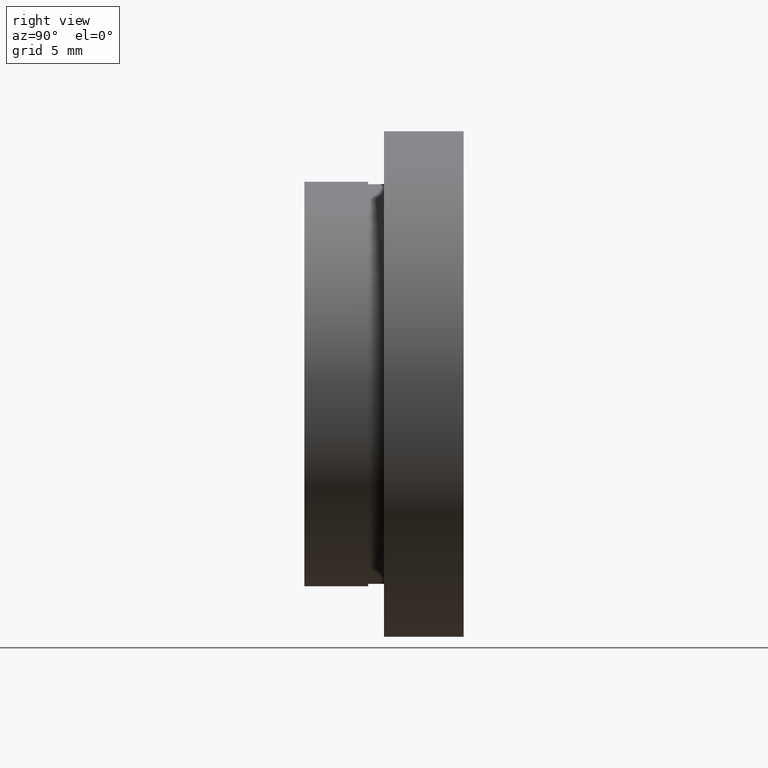
[diagram: clean part render]
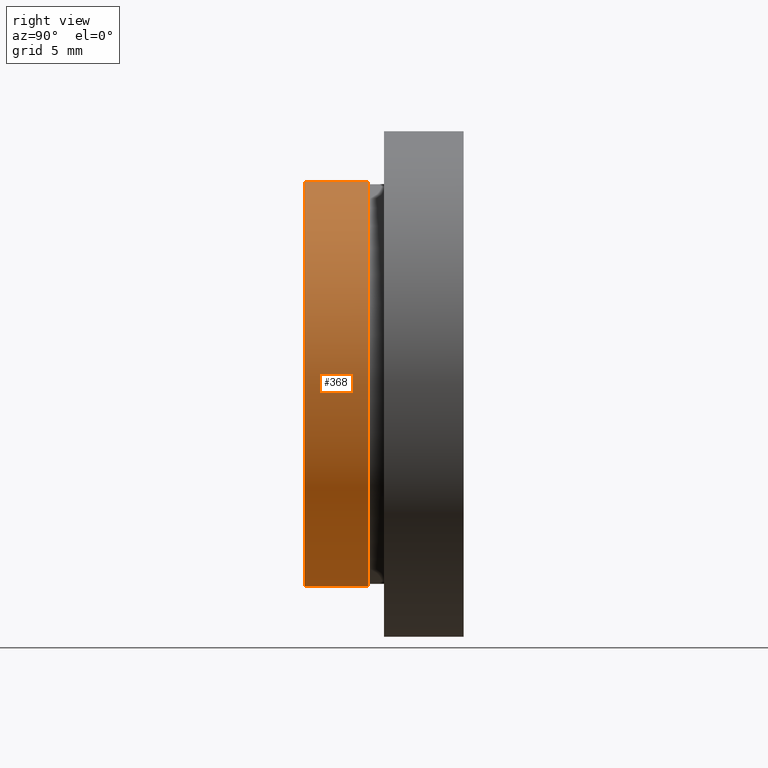
[diagram: same view with one face highlighted and labeled with its STEP entity id]
A machine part, right view. The second image highlights one B-rep face of the part: STEP entity #368.
In plain terms, the highlighted cylindrical surface (partial cylindrical patch) has radius 12.7 mm, axis along (-0, 1, -0).
Its self-contained STEP definition (entity closure, byte-faithful):
#23 = DIRECTION ( 'NONE',  ( 0.0000000000000000000, 0.0000000000000000000, 1.000000000000000000 ) ) ;
#34 = EDGE_CURVE ( 'NONE', #483, #425, #127, .T. ) ;
#38 = CARTESIAN_POINT ( 'NONE',  ( 0.0000000000000000000, 13.74468085106383300, 12.69999999999999900 ) ) ;
#47 = CARTESIAN_POINT ( 'NONE',  ( 1.555301434917138400E-015, 0.0000000000000000000, -12.69999999999999900 ) ) ;
#50 = CARTESIAN_POINT ( 'NONE',  ( 1.555301434917138400E-015, 4.000000000000000000, -12.69999999999999900 ) ) ;
#54 = VECTOR ( 'NONE', #463, 1000.000000000000000 ) ;
#84 = CARTESIAN_POINT ( 'NONE',  ( 0.0000000000000000000, 4.000000000000000000, 0.0000000000000000000 ) ) ;
#106 = AXIS2_PLACEMENT_3D ( 'NONE', #84, #362, #23 ) ;
#111 = ORIENTED_EDGE ( 'NONE', *, *, #331, .F. ) ;
#116 = EDGE_LOOP ( 'NONE', ( #455, #450, #454, #111 ) ) ;
#127 = LINE ( 'NONE', #364, #54 ) ;
#208 = VECTOR ( 'NONE', #616, 1000.000000000000000 ) ;
#222 = VERTEX_POINT ( 'NONE', #608 ) ;
#240 = CIRCLE ( 'NONE', #106, 12.69999999999999900 ) ;
#242 = CIRCLE ( 'NONE', #610, 12.69999999999999900 ) ;
#253 = CARTESIAN_POINT ( 'NONE',  ( 0.0000000000000000000, 13.74468085106383300, 0.0000000000000000000 ) ) ;
#273 = VERTEX_POINT ( 'NONE', #451 ) ;
#275 = EDGE_CURVE ( 'NONE', #273, #483, #242, .T. ) ;
#276 = DIRECTION ( 'NONE',  ( -0.0000000000000000000, 1.000000000000000000, -0.0000000000000000000 ) ) ;
#331 = EDGE_CURVE ( 'NONE', #273, #222, #375, .T. ) ;
#362 = DIRECTION ( 'NONE',  ( -0.0000000000000000000, 1.000000000000000000, -0.0000000000000000000 ) ) ;
#364 = CARTESIAN_POINT ( 'NONE',  ( 1.555301434917138400E-015, 13.74468085106383300, -12.69999999999999900 ) ) ;
#368 = ADVANCED_FACE ( 'NONE', ( #412 ), #399, .T. ) ;
#375 = LINE ( 'NONE', #38, #208 ) ;
#399 = CYLINDRICAL_SURFACE ( 'NONE', #493, 12.69999999999999900 ) ;
#402 = DIRECTION ( 'NONE',  ( 0.0000000000000000000, 0.0000000000000000000, 1.000000000000000000 ) ) ;
#412 = FACE_OUTER_BOUND ( 'NONE', #116, .T. ) ;
#425 = VERTEX_POINT ( 'NONE', #50 ) ;
#450 = ORIENTED_EDGE ( 'NONE', *, *, #34, .T. ) ;
#451 = CARTESIAN_POINT ( 'NONE',  ( 0.0000000000000000000, 0.0000000000000000000, 12.69999999999999900 ) ) ;
#454 = ORIENTED_EDGE ( 'NONE', *, *, #548, .F. ) ;
#455 = ORIENTED_EDGE ( 'NONE', *, *, #275, .T. ) ;
#463 = DIRECTION ( 'NONE',  ( -0.0000000000000000000, 1.000000000000000000, -0.0000000000000000000 ) ) ;
#483 = VERTEX_POINT ( 'NONE', #47 ) ;
#493 = AXIS2_PLACEMENT_3D ( 'NONE', #253, #276, #402 ) ;
#505 = DIRECTION ( 'NONE',  ( -0.0000000000000000000, 1.000000000000000000, -0.0000000000000000000 ) ) ;
#538 = DIRECTION ( 'NONE',  ( 0.0000000000000000000, 0.0000000000000000000, 1.000000000000000000 ) ) ;
#539 = CARTESIAN_POINT ( 'NONE',  ( 0.0000000000000000000, 0.0000000000000000000, 0.0000000000000000000 ) ) ;
#548 = EDGE_CURVE ( 'NONE', #222, #425, #240, .T. ) ;
#608 = CARTESIAN_POINT ( 'NONE',  ( 0.0000000000000000000, 4.000000000000000000, 12.69999999999999900 ) ) ;
#610 = AXIS2_PLACEMENT_3D ( 'NONE', #539, #505, #538 ) ;
#616 = DIRECTION ( 'NONE',  ( -0.0000000000000000000, 1.000000000000000000, -0.0000000000000000000 ) ) ;